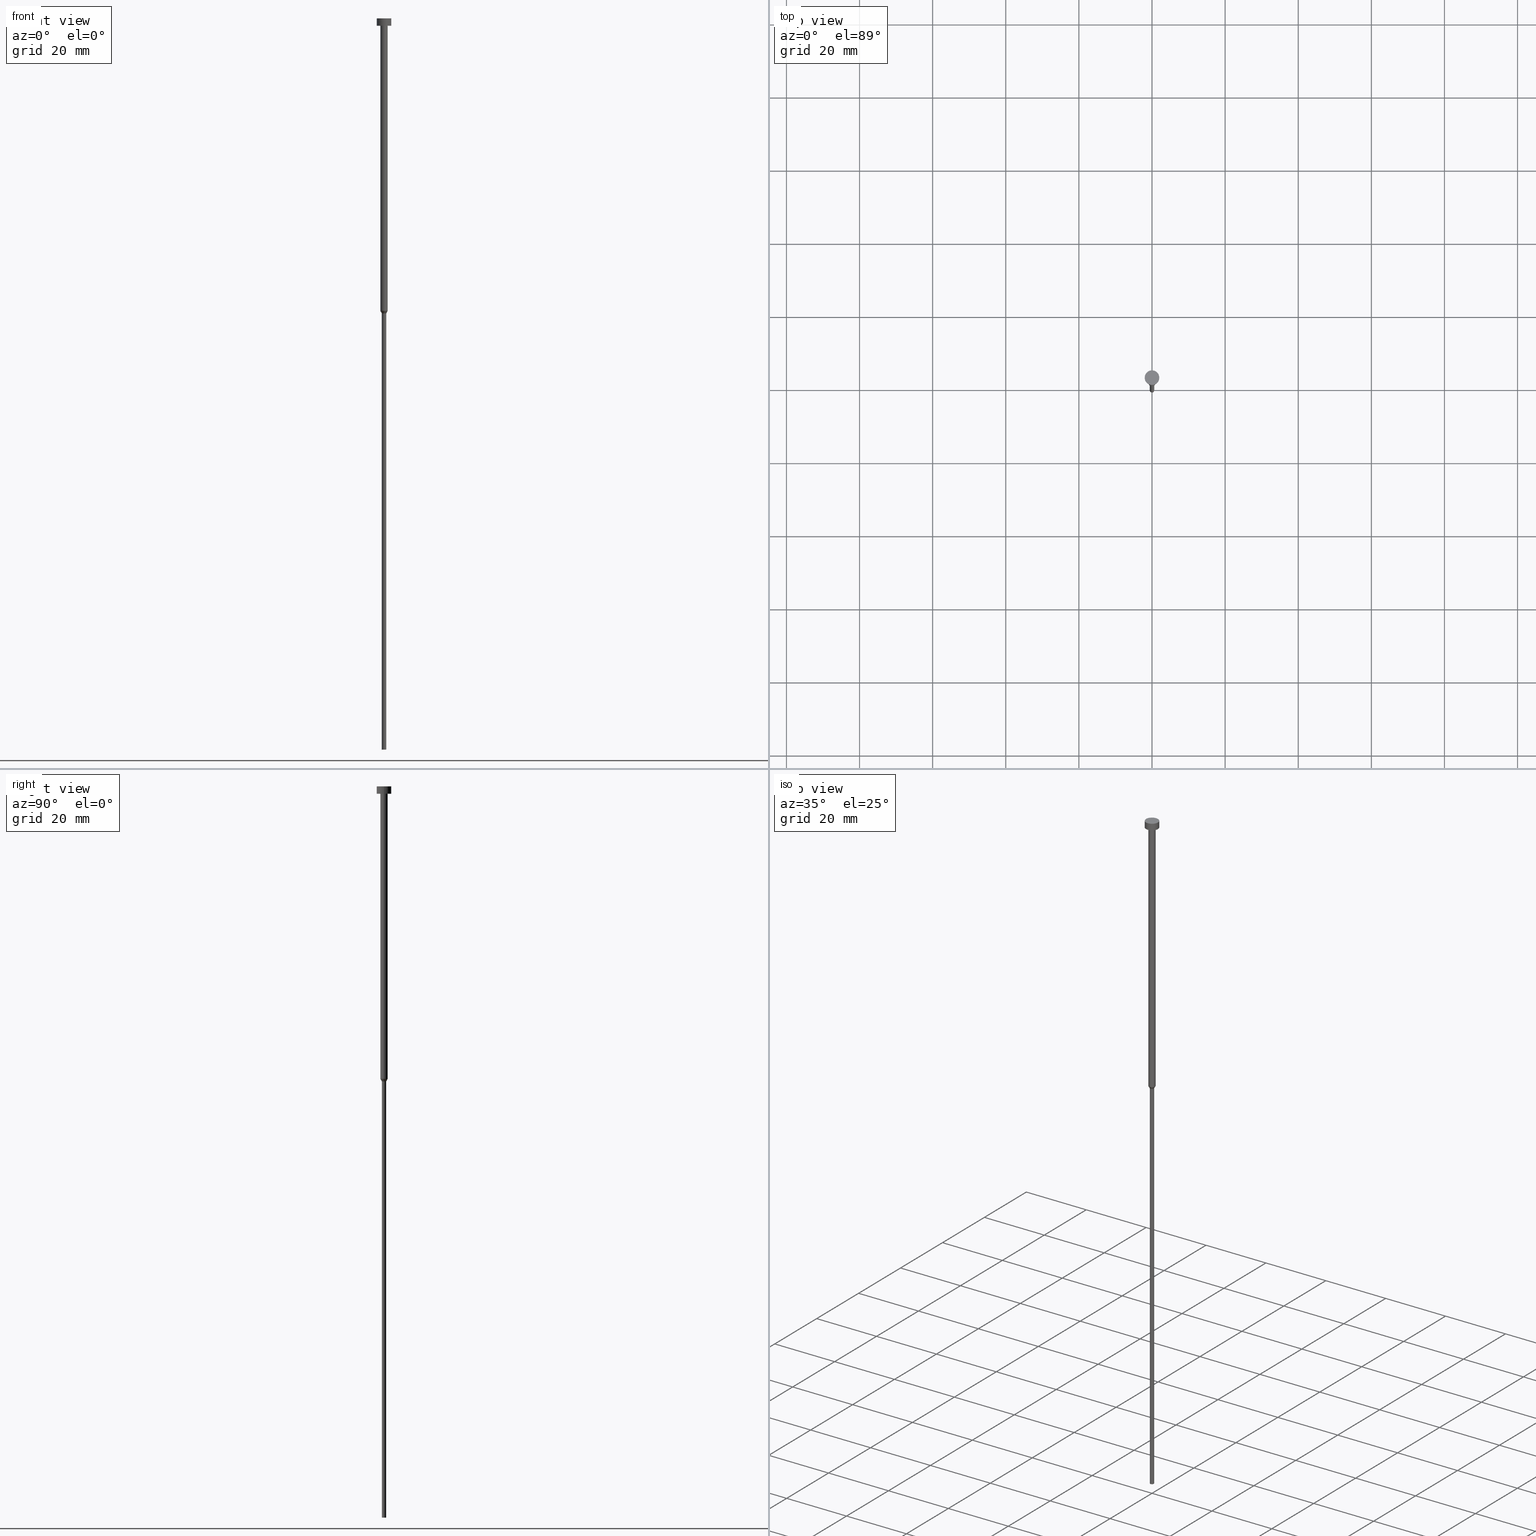
[diagram: canonical four-view strip — front | top / right | iso, engineering-drawing reading convention]
A machine part, canonical four-view strip (front | top / right | iso — engineering-drawing reading convention). The complete STEP part file that produces these views, byte-faithful:
ISO-10303-21;
HEADER;
FILE_DESCRIPTION (( 'STEP AP203' ),
    '1' );
FILE_NAME ('e88c.STEP',
    '2023-02-13T11:49:29',
    ( '' ),
    ( '' ),
    'SwSTEP 2.0',
    'SolidWorks 2019',
    '' );
FILE_SCHEMA (( 'CONFIG_CONTROL_DESIGN' ));
ENDSEC;

DATA;
#1 = DIRECTION ( 'NONE',  ( -1.000000000000000000, 0.000000000000000000, -0.000000000000000000 ) ) ;
#2 = CARTESIAN_POINT ( 'NONE',  ( 0.000000000000000000, 0.000000000000000000, -80.00000000000000000 ) ) ;
#3 = AXIS2_PLACEMENT_3D ( 'NONE', #2, #332, #88 ) ;
#4 = DIRECTION ( 'NONE',  ( 1.000000000000000000, 0.000000000000000000, 0.000000000000000000 ) ) ;
#5 = FACE_OUTER_BOUND ( 'NONE', #145, .T. ) ;
#6 = ORIENTED_EDGE ( 'NONE', *, *, #77, .T. ) ;
#7 = DIRECTION ( 'NONE',  ( 1.000000000000000000, 0.000000000000000000, 0.000000000000000000 ) ) ;
#8 = ORIENTED_EDGE ( 'NONE', *, *, #251, .T. ) ;
#9 = CIRCLE ( 'NONE', #47, 0.5999999999999998668 ) ;
#10 = DIRECTION ( 'NONE',  ( -0.000000000000000000, -0.000000000000000000, 1.000000000000000000 ) ) ;
#11 = ORIENTED_EDGE ( 'NONE', *, *, #57, .T. ) ;
#12 = ADVANCED_FACE ( 'NONE', ( #92 ), #67, .T. ) ;
#13 = DATE_TIME_ROLE ( 'creation_date' ) ;
#14 = SECURITY_CLASSIFICATION ( '', '', #320 ) ;
#15 = ADVANCED_FACE ( 'NONE', ( #352 ), #351, .T. ) ;
#16 = CALENDAR_DATE ( 2023, 13, 2 ) ;
#17 = ORIENTED_EDGE ( 'NONE', *, *, #53, .F. ) ;
#18 = COORDINATED_UNIVERSAL_TIME_OFFSET ( 1, 0, .AHEAD. ) ;
#19 = PERSON ( 'NEUR�EN�', 'NEUR�EN�', 'NEUR�EN�', ('NEUR�EN�'), ('NEUR�EN�'), ('NEUR�EN�') ) ;
#20 = CARTESIAN_POINT ( 'NONE',  ( 1.000000000000003109, 0.000000000000000000, -80.00000000000000000 ) ) ;
#21 = APPROVAL_ROLE ( '' ) ;
#22 = DIRECTION ( 'NONE',  ( -0.000000000000000000, -0.000000000000000000, 1.000000000000000000 ) ) ;
#23 = COORDINATED_UNIVERSAL_TIME_OFFSET ( 1, 0, .AHEAD. ) ;
#24 = CARTESIAN_POINT ( 'NONE',  ( -2.000000000000000000, 2.449293598294706414E-16, 0.000000000000000000 ) ) ;
#25 = DIRECTION ( 'NONE',  ( -0.000000000000000000, -0.000000000000000000, 1.000000000000000000 ) ) ;
#26 = CARTESIAN_POINT ( 'NONE',  ( 0.000000000000000000, -2.000000000000000000, -2.000000000000000444 ) ) ;
#27 = LOCAL_TIME ( 12, 49, 29.00000000000000000, #159 ) ;
#28 = PRODUCT_RELATED_PRODUCT_CATEGORY ( 'detail', '', ( #140 ) ) ;
#29 = CARTESIAN_POINT ( 'NONE',  ( 0.000000000000000000, 0.000000000000000000, -80.00000000000000000 ) ) ;
#30 = AXIS2_PLACEMENT_3D ( 'NONE', #29, #10, #227 ) ;
#31 = CARTESIAN_POINT ( 'NONE',  ( 0.000000000000000000, 0.000000000000000000, -2.000000000000000444 ) ) ;
#32 = CARTESIAN_POINT ( 'NONE',  ( -2.000000000000000000, 2.449293598294706414E-16, -2.449293598294705921E-16 ) ) ;
#33 = ORIENTED_EDGE ( 'NONE', *, *, #300, .T. ) ;
#34 = APPROVAL_PERSON_ORGANIZATION ( #39, #254, #157 ) ;
#35 = PLANE ( 'NONE',  #50 ) ;
#36 = ORIENTED_EDGE ( 'NONE', *, *, #300, .F. ) ;
#37 = DIRECTION ( 'NONE',  ( -0.000000000000000000, -0.000000000000000000, 1.000000000000000000 ) ) ;
#38 = EDGE_LOOP ( 'NONE', ( #287, #199, #124, #344 ) ) ;
#39 = PERSON_AND_ORGANIZATION ( #19, #42 ) ;
#40 = EDGE_LOOP ( 'NONE', ( #284, #150 ) ) ;
#41 = COORDINATED_UNIVERSAL_TIME_OFFSET ( 1, 0, .AHEAD. ) ;
#42 = ORGANIZATION ( 'NEUR�EN�', 'NEUR�EN�', '' ) ;
#43 = VERTEX_POINT ( 'NONE', #134 ) ;
#44 = APPROVAL_STATUS ( 'not_yet_approved' ) ;
#45 = CARTESIAN_POINT ( 'NONE',  ( 2.000000000000000000, 0.000000000000000000, -2.000000000000000444 ) ) ;
#46 = CALENDAR_DATE ( 2023, 13, 2 ) ;
#47 = AXIS2_PLACEMENT_3D ( 'NONE', #131, #274, #191 ) ;
#48 = DIRECTION ( 'NONE',  ( 1.000000000000000000, 0.000000000000000000, 0.000000000000000000 ) ) ;
#49 = CALENDAR_DATE ( 2023, 13, 2 ) ;
#50 = AXIS2_PLACEMENT_3D ( 'NONE', #195, #200, #305 ) ;
#51 = CARTESIAN_POINT ( 'NONE',  ( 0.000000000000000000, 0.000000000000000000, 0.000000000000000000 ) ) ;
#52 = CARTESIAN_POINT ( 'NONE',  ( 0.000000000000000000, 0.000000000000000000, -2.449293598294705921E-16 ) ) ;
#53 = EDGE_CURVE ( 'NONE', #228, #184, #321, .T. ) ;
#54 = AXIS2_PLACEMENT_3D ( 'NONE', #181, #81, #350 ) ;
#55 = FACE_OUTER_BOUND ( 'NONE', #38, .T. ) ;
#56 = VECTOR ( 'NONE', #268, 1000.000000000000114 ) ;
#57 = EDGE_CURVE ( 'NONE', #333, #276, #295, .T. ) ;
#58 = DIRECTION ( 'NONE',  ( -0.000000000000000000, -0.000000000000000000, 1.000000000000000000 ) ) ;
#59 = PRODUCT_DEFINITION ( 'NEZN�M�', '', #170, #269 ) ;
#60 = APPROVAL_PERSON_ORGANIZATION ( #94, #115, #99 ) ;
#61 = DIRECTION ( 'NONE',  ( 1.000000000000000000, 0.000000000000000000, 0.000000000000000000 ) ) ;
#62 = ORIENTED_EDGE ( 'NONE', *, *, #221, .F. ) ;
#63 = DIRECTION ( 'NONE',  ( -0.000000000000000000, -0.000000000000000000, 1.000000000000000000 ) ) ;
#64 = ORIENTED_EDGE ( 'NONE', *, *, #204, .F. ) ;
#65 = CIRCLE ( 'NONE', #317, 0.5999999999999998668 ) ;
#66 = DIRECTION ( 'NONE',  ( 1.000000000000000000, 0.000000000000000000, 0.000000000000000000 ) ) ;
#67 = PLANE ( 'NONE',  #54 ) ;
#68 = ORIENTED_EDGE ( 'NONE', *, *, #216, .T. ) ;
#69 = PERSON_AND_ORGANIZATION_ROLE ( 'classification_officer' ) ;
#70 = ORIENTED_EDGE ( 'NONE', *, *, #250, .F. ) ;
#71 = DATE_AND_TIME ( #206, #238 ) ;
#72 = DIRECTION ( 'NONE',  ( 1.000000000000000000, 0.000000000000000000, 0.000000000000000000 ) ) ;
#73 = COORDINATED_UNIVERSAL_TIME_OFFSET ( 1, 0, .AHEAD. ) ;
#74 = CARTESIAN_POINT ( 'NONE',  ( 0.000000000000000000, 0.000000000000000000, -2.000000000000000444 ) ) ;
#75 = PERSON_AND_ORGANIZATION ( #19, #42 ) ;
#76 = CARTESIAN_POINT ( 'NONE',  ( 0.000000000000000000, 0.000000000000000000, -2.000000000000000444 ) ) ;
#77 = EDGE_CURVE ( 'NONE', #205, #315, #166, .T. ) ;
#78 = AXIS2_PLACEMENT_3D ( 'NONE', #112, #246, #119 ) ;
#79 = FACE_OUTER_BOUND ( 'NONE', #148, .T. ) ;
#80 = EDGE_CURVE ( 'NONE', #333, #122, #9, .T. ) ;
#81 = DIRECTION ( 'NONE',  ( 0.000000000000000000, -0.000000000000000000, 1.000000000000000000 ) ) ;
#82 = CLOSED_SHELL ( 'NONE', ( #171, #116, #15, #286, #245, #235, #341, #172, #176, #296, #12 ) ) ;
#83 = PRODUCT_DEFINITION_SHAPE ( 'NONE', 'NONE',  #59 ) ;
#84 = CARTESIAN_POINT ( 'NONE',  ( 0.5999999999999998668, 0.000000000000000000, -80.69282032302756136 ) ) ;
#85 = DIRECTION ( 'NONE',  ( -0.000000000000000000, -0.000000000000000000, 1.000000000000000000 ) ) ;
#86 = DIRECTION ( 'NONE',  ( -0.000000000000000000, -0.000000000000000000, 1.000000000000000000 ) ) ;
#87 = ORIENTED_EDGE ( 'NONE', *, *, #250, .T. ) ;
#88 = DIRECTION ( 'NONE',  ( 1.000000000000000000, 0.000000000000000000, 0.000000000000000000 ) ) ;
#89 = ORIENTED_EDGE ( 'NONE', *, *, #142, .F. ) ;
#90 = VECTOR ( 'NONE', #293, 1000.000000000000114 ) ;
#91 = CARTESIAN_POINT ( 'NONE',  ( 0.000000000000000000, 0.000000000000000000, -2.449293598294705921E-16 ) ) ;
#92 = FACE_OUTER_BOUND ( 'NONE', #230, .T. ) ;
#93 = CIRCLE ( 'NONE', #30, 1.000000000000003109 ) ;
#94 = PERSON_AND_ORGANIZATION ( #19, #42 ) ;
#95 = ORIENTED_EDGE ( 'NONE', *, *, #57, .F. ) ;
#96 = APPROVAL_DATE_TIME ( #349, #254 ) ;
#97 = ORIENTED_EDGE ( 'NONE', *, *, #324, .F. ) ;
#98 = VECTOR ( 'NONE', #325, 1000.000000000000000 ) ;
#99 = APPROVAL_ROLE ( '' ) ;
#100 = ORIENTED_EDGE ( 'NONE', *, *, #324, .T. ) ;
#101 = APPLICATION_PROTOCOL_DEFINITION ( 'international standard', 'config_control_design', 1994, #346 ) ;
#102 = AXIS2_PLACEMENT_3D ( 'NONE', #198, #58, #7 ) ;
#103 = CARTESIAN_POINT ( 'NONE',  ( 0.000000000000000000, 0.000000000000000000, -2.000000000000000444 ) ) ;
#104 = PERSON_AND_ORGANIZATION_ROLE ( 'creator' ) ;
#105 = CARTESIAN_POINT ( 'NONE',  ( 1.000000000000003331, 0.000000000000000000, 0.000000000000000000 ) ) ;
#106 = EDGE_CURVE ( 'NONE', #276, #318, #192, .T. ) ;
#107 = DIRECTION ( 'NONE',  ( -0.000000000000000000, -0.000000000000000000, 1.000000000000000000 ) ) ;
#108 = EDGE_CURVE ( 'NONE', #43, #315, #219, .T. ) ;
#109 = LOCAL_TIME ( 12, 49, 29.00000000000000000, #18 ) ;
#110 = PLANE ( 'NONE',  #197 ) ;
#111 = CARTESIAN_POINT ( 'NONE',  ( 1.000000000000003109, 0.000000000000000000, -80.00000000000000000 ) ) ;
#112 = CARTESIAN_POINT ( 'NONE',  ( 0.000000000000000000, 0.000000000000000000, -80.69282032302756136 ) ) ;
#113 = EDGE_CURVE ( 'NONE', #228, #311, #322, .T. ) ;
#114 = VECTOR ( 'NONE', #301, 1000.000000000000000 ) ;
#115 = APPROVAL ( #203, 'NEUR�EN�' ) ;
#116 = ADVANCED_FACE ( 'NONE', ( #297 ), #237, .T. ) ;
#117 = CARTESIAN_POINT ( 'NONE',  ( 0.000000000000000000, 0.000000000000000000, 0.000000000000000000 ) ) ;
#118 = AXIS2_PLACEMENT_3D ( 'NONE', #135, #107, #240 ) ;
#119 = DIRECTION ( 'NONE',  ( 1.000000000000000000, 0.000000000000000000, 0.000000000000000000 ) ) ;
#120 = ORIENTED_EDGE ( 'NONE', *, *, #113, .F. ) ;
#121 = FACE_OUTER_BOUND ( 'NONE', #261, .T. ) ;
#122 = VERTEX_POINT ( 'NONE', #186 ) ;
#123 = FACE_OUTER_BOUND ( 'NONE', #331, .T. ) ;
#124 = ORIENTED_EDGE ( 'NONE', *, *, #225, .F. ) ;
#125 = AXIS2_PLACEMENT_3D ( 'NONE', #91, #86, #66 ) ;
#126 = CIRCLE ( 'NONE', #302, 1.000000000000003109 ) ;
#127 = APPLICATION_PROTOCOL_DEFINITION ( 'international standard', 'config_control_design', 1994, #264 ) ;
#128 = ORIENTED_EDGE ( 'NONE', *, *, #156, .T. ) ;
#129 = DATE_AND_TIME ( #16, #109 ) ;
#130 = ORIENTED_EDGE ( 'NONE', *, *, #292, .T. ) ;
#131 = CARTESIAN_POINT ( 'NONE',  ( 0.000000000000000000, 0.000000000000000000, -200.0000000000000000 ) ) ;
#132 = PERSON_AND_ORGANIZATION_ROLE ( 'creator' ) ;
#133 = CC_DESIGN_APPROVAL ( #328, ( #170 ) ) ;
#134 = CARTESIAN_POINT ( 'NONE',  ( -1.000000000000003553, 1.224646799147357398E-16, -2.000000000000000444 ) ) ;
#135 = CARTESIAN_POINT ( 'NONE',  ( 0.000000000000000000, 0.000000000000000000, 0.000000000000000000 ) ) ;
#136 = DIRECTION ( 'NONE',  ( 1.000000000000000000, 0.000000000000000000, 0.000000000000000000 ) ) ;
#137 = CC_DESIGN_PERSON_AND_ORGANIZATION_ASSIGNMENT ( #232, #132, ( #59 ) ) ;
#138 = AXIS2_PLACEMENT_3D ( 'NONE', #31, #63, #224 ) ;
#139 = DIRECTION ( 'NONE',  ( 0.000000000000000000, 0.000000000000000000, -1.000000000000000000 ) ) ;
#140 = PRODUCT ( 'e88c', 'e88c', '', ( #182 ) ) ;
#141 = CARTESIAN_POINT ( 'NONE',  ( -2.000000000000000000, 2.449293598294706414E-16, -2.000000000000000444 ) ) ;
#142 = EDGE_CURVE ( 'NONE', #311, #313, #174, .T. ) ;
#143 = CYLINDRICAL_SURFACE ( 'NONE', #329, 2.000000000000000000 ) ;
#144 = CARTESIAN_POINT ( 'NONE',  ( 1.000000000000003553, 0.000000000000000000, -2.000000000000000444 ) ) ;
#145 = EDGE_LOOP ( 'NONE', ( #155, #100, #209, #62 ) ) ;
#146 = AXIS2_PLACEMENT_3D ( 'NONE', #270, #316, #345 ) ;
#147 = FACE_OUTER_BOUND ( 'NONE', #233, .T. ) ;
#148 = EDGE_LOOP ( 'NONE', ( #281, #263, #6, #339 ) ) ;
#149 = CARTESIAN_POINT ( 'NONE',  ( 0.000000000000000000, 0.000000000000000000, 0.000000000000000000 ) ) ;
#150 = ORIENTED_EDGE ( 'NONE', *, *, #108, .T. ) ;
#151 = DATE_AND_TIME ( #187, #27 ) ;
#152 = ORIENTED_EDGE ( 'NONE', *, *, #251, .F. ) ;
#153 = EDGE_CURVE ( 'NONE', #315, #43, #247, .T. ) ;
#154 = CC_DESIGN_APPROVAL ( #115, ( #14 ) ) ;
#155 = ORIENTED_EDGE ( 'NONE', *, *, #106, .F. ) ;
#156 = EDGE_CURVE ( 'NONE', #318, #43, #190, .T. ) ;
#157 = APPROVAL_ROLE ( '' ) ;
#158 = LINE ( 'NONE', #111, #56 ) ;
#159 = COORDINATED_UNIVERSAL_TIME_OFFSET ( 1, 0, .AHEAD. ) ;
#160 = DIRECTION ( 'NONE',  ( -0.000000000000000000, -0.000000000000000000, 1.000000000000000000 ) ) ;
#161 = DATE_AND_TIME ( #49, #215 ) ;
#162 = CIRCLE ( 'NONE', #102, 0.5999999999999998668 ) ;
#163 = CARTESIAN_POINT ( 'NONE',  ( -1.000000000000003331, 1.224646799147357151E-16, 0.000000000000000000 ) ) ;
#164 = CC_DESIGN_DATE_AND_TIME_ASSIGNMENT ( #161, #337, ( #14 ) ) ;
#165 = CYLINDRICAL_SURFACE ( 'NONE', #338, 1.000000000000003331 ) ;
#166 = LINE ( 'NONE', #105, #279 ) ;
#167 = CONICAL_SURFACE ( 'NONE', #3, 1.000000000000003109, 0.5235987755982968173 ) ;
#168 = CYLINDRICAL_SURFACE ( 'NONE', #275, 0.5999999999999998668 ) ;
#169 = AXIS2_PLACEMENT_3D ( 'NONE', #74, #217, #188 ) ;
#170 = PRODUCT_DEFINITION_FORMATION_WITH_SPECIFIED_SOURCE ( 'LIBOVOLN�', '', #140, .NOT_KNOWN. ) ;
#171 = ADVANCED_FACE ( 'NONE', ( #55 ), #272, .T. ) ;
#172 = ADVANCED_FACE ( 'NONE', ( #79 ), #165, .T. ) ;
#173 = FACE_OUTER_BOUND ( 'NONE', #226, .T. ) ;
#174 = CIRCLE ( 'NONE', #307, 2.000000000000000000 ) ;
#175 = ORIENTED_EDGE ( 'NONE', *, *, #77, .F. ) ;
#176 = ADVANCED_FACE ( 'NONE', ( #242, #354 ), #110, .T. ) ;
#177 = CARTESIAN_POINT ( 'NONE',  ( -0.5999999999999998668, 7.347880794884117764E-17, -80.69282032302756136 ) ) ;
#178 = ORIENTED_EDGE ( 'NONE', *, *, #80, .F. ) ;
#179 = CC_DESIGN_DATE_AND_TIME_ASSIGNMENT ( #151, #13, ( #59 ) ) ;
#180 = CYLINDRICAL_SURFACE ( 'NONE', #256, 0.5999999999999998668 ) ;
#181 = CARTESIAN_POINT ( 'NONE',  ( 0.000000000000000000, 0.000000000000000000, -1.224646799147352961E-16 ) ) ;
#182 = MECHANICAL_CONTEXT ( 'NONE', #264, 'mechanical' ) ;
#183 = EDGE_LOOP ( 'NONE', ( #342, #17 ) ) ;
#184 = VERTEX_POINT ( 'NONE', #45 ) ;
#185 = PERSON_AND_ORGANIZATION_ROLE ( 'design_supplier' ) ;
#186 = CARTESIAN_POINT ( 'NONE',  ( 0.5999999999999998668, 0.000000000000000000, -200.0000000000000000 ) ) ;
#187 = CALENDAR_DATE ( 2023, 13, 2 ) ;
#188 = DIRECTION ( 'NONE',  ( 1.000000000000000000, 0.000000000000000000, 0.000000000000000000 ) ) ;
#189 = PERSON_AND_ORGANIZATION ( #19, #42 ) ;
#190 = LINE ( 'NONE', #163, #202 ) ;
#191 = DIRECTION ( 'NONE',  ( 1.000000000000000000, 0.000000000000000000, 0.000000000000000000 ) ) ;
#192 = LINE ( 'NONE', #298, #90 ) ;
#193 = CARTESIAN_POINT ( 'NONE',  ( -0.5999999999999998668, 7.347880794884117764E-17, -200.0000000000000000 ) ) ;
#194 = APPROVAL_PERSON_ORGANIZATION ( #340, #328, #21 ) ;
#195 = CARTESIAN_POINT ( 'NONE',  ( 0.000000000000000000, 0.000000000000000000, -200.0000000000000000 ) ) ;
#196 = CC_DESIGN_PERSON_AND_ORGANIZATION_ASSIGNMENT ( #75, #343, ( #140 ) ) ;
#197 = AXIS2_PLACEMENT_3D ( 'NONE', #26, #139, #1 ) ;
#198 = CARTESIAN_POINT ( 'NONE',  ( 0.000000000000000000, 0.000000000000000000, -200.0000000000000000 ) ) ;
#199 = ORIENTED_EDGE ( 'NONE', *, *, #113, .T. ) ;
#200 = DIRECTION ( 'NONE',  ( 0.000000000000000000, 0.000000000000000000, -1.000000000000000000 ) ) ;
#201 = ORIENTED_EDGE ( 'NONE', *, *, #53, .T. ) ;
#202 = VECTOR ( 'NONE', #291, 1000.000000000000000 ) ;
#203 = APPROVAL_STATUS ( 'not_yet_approved' ) ;
#204 = EDGE_CURVE ( 'NONE', #309, #205, #158, .T. ) ;
#205 = VERTEX_POINT ( 'NONE', #20 ) ;
#206 = CALENDAR_DATE ( 2023, 13, 2 ) ;
#207 = ORIENTED_EDGE ( 'NONE', *, *, #216, .F. ) ;
#208 =( NAMED_UNIT ( * ) PLANE_ANGLE_UNIT ( ) SI_UNIT ( $, .RADIAN. ) );
#209 = ORIENTED_EDGE ( 'NONE', *, *, #204, .T. ) ;
#210 = AXIS2_PLACEMENT_3D ( 'NONE', #76, #22, #239 ) ;
#211 = CARTESIAN_POINT ( 'NONE',  ( 0.000000000000000000, 0.000000000000000000, -80.00000000000000000 ) ) ;
#212 = PERSON_AND_ORGANIZATION ( #19, #42 ) ;
#213 = DIRECTION ( 'NONE',  ( -0.000000000000000000, -0.000000000000000000, 1.000000000000000000 ) ) ;
#214 = DIRECTION ( 'NONE',  ( 1.000000000000000000, 0.000000000000000000, 0.000000000000000000 ) ) ;
#215 = LOCAL_TIME ( 12, 49, 29.00000000000000000, #41 ) ;
#216 = EDGE_CURVE ( 'NONE', #122, #333, #162, .T. ) ;
#217 = DIRECTION ( 'NONE',  ( -0.000000000000000000, -0.000000000000000000, 1.000000000000000000 ) ) ;
#218 = DIRECTION ( 'NONE',  ( -0.000000000000000000, -0.000000000000000000, 1.000000000000000000 ) ) ;
#219 = CIRCLE ( 'NONE', #241, 1.000000000000003553 ) ;
#220 = CARTESIAN_POINT ( 'NONE',  ( 0.000000000000000000, 0.000000000000000000, -80.00000000000000000 ) ) ;
#221 = EDGE_CURVE ( 'NONE', #318, #205, #93, .T. ) ;
#222 = DIRECTION ( 'NONE',  ( -0.000000000000000000, -0.000000000000000000, 1.000000000000000000 ) ) ;
#223 = EDGE_LOOP ( 'NONE', ( #8, #128, #306, #175 ) ) ;
#224 = DIRECTION ( 'NONE',  ( 1.000000000000000000, 0.000000000000000000, 0.000000000000000000 ) ) ;
#225 = EDGE_CURVE ( 'NONE', #313, #311, #262, .T. ) ;
#226 = EDGE_LOOP ( 'NONE', ( #68, #11, #36, #70 ) ) ;
#227 = DIRECTION ( 'NONE',  ( 1.000000000000000000, 0.000000000000000000, 0.000000000000000000 ) ) ;
#228 = VERTEX_POINT ( 'NONE', #141 ) ;
#229 = APPROVAL_DATE_TIME ( #71, #328 ) ;
#230 = EDGE_LOOP ( 'NONE', ( #257, #236 ) ) ;
#231 =( GEOMETRIC_REPRESENTATION_CONTEXT ( 3 ) GLOBAL_UNCERTAINTY_ASSIGNED_CONTEXT ( ( #304 ) ) GLOBAL_UNIT_ASSIGNED_CONTEXT ( ( #308, #208, #290 ) ) REPRESENTATION_CONTEXT ( 'NONE', 'WORKASPACE' ) );
#232 = PERSON_AND_ORGANIZATION ( #19, #42 ) ;
#233 = EDGE_LOOP ( 'NONE', ( #120, #201, #130, #89 ) ) ;
#234 = SHAPE_DEFINITION_REPRESENTATION ( #83, #353 ) ;
#235 = ADVANCED_FACE ( 'NONE', ( #121 ), #168, .T. ) ;
#236 = ORIENTED_EDGE ( 'NONE', *, *, #142, .T. ) ;
#237 = CYLINDRICAL_SURFACE ( 'NONE', #267, 1.000000000000003331 ) ;
#238 = LOCAL_TIME ( 12, 49, 29.00000000000000000, #23 ) ;
#239 = DIRECTION ( 'NONE',  ( 1.000000000000000000, 0.000000000000000000, 0.000000000000000000 ) ) ;
#240 = DIRECTION ( 'NONE',  ( 1.000000000000000000, 0.000000000000000000, 0.000000000000000000 ) ) ;
#241 = AXIS2_PLACEMENT_3D ( 'NONE', #103, #323, #48 ) ;
#242 = FACE_BOUND ( 'NONE', #40, .T. ) ;
#243 = VECTOR ( 'NONE', #37, 1000.000000000000000 ) ;
#244 = DIRECTION ( 'NONE',  ( -0.000000000000000000, -0.000000000000000000, 1.000000000000000000 ) ) ;
#245 = ADVANCED_FACE ( 'NONE', ( #123 ), #35, .T. ) ;
#246 = DIRECTION ( 'NONE',  ( -0.000000000000000000, -0.000000000000000000, 1.000000000000000000 ) ) ;
#247 = CIRCLE ( 'NONE', #210, 1.000000000000003553 ) ;
#248 = CIRCLE ( 'NONE', #138, 2.000000000000000000 ) ;
#249 = CC_DESIGN_PERSON_AND_ORGANIZATION_ASSIGNMENT ( #189, #69, ( #14 ) ) ;
#250 = EDGE_CURVE ( 'NONE', #122, #309, #334, .T. ) ;
#251 = EDGE_CURVE ( 'NONE', #205, #318, #126, .T. ) ;
#253 = VECTOR ( 'NONE', #213, 1000.000000000000000 ) ;
#252 = DIRECTION ( 'NONE',  ( -0.000000000000000000, -0.000000000000000000, 1.000000000000000000 ) ) ;
#254 = APPROVAL ( #44, 'NEUR�EN�' ) ;
#255 = CARTESIAN_POINT ( 'NONE',  ( -1.000000000000003109, 1.224646799147356905E-16, -80.00000000000000000 ) ) ;
#256 = AXIS2_PLACEMENT_3D ( 'NONE', #117, #327, #303 ) ;
#257 = ORIENTED_EDGE ( 'NONE', *, *, #225, .T. ) ;
#258 = CARTESIAN_POINT ( 'NONE',  ( 0.000000000000000000, 0.000000000000000000, -80.69282032302756136 ) ) ;
#259 = EDGE_LOOP ( 'NONE', ( #33, #288, #152, #64 ) ) ;
#260 = DIRECTION ( 'NONE',  ( 1.000000000000000000, 0.000000000000000000, 0.000000000000000000 ) ) ;
#261 = EDGE_LOOP ( 'NONE', ( #95, #266, #87, #97 ) ) ;
#262 = CIRCLE ( 'NONE', #125, 2.000000000000000000 ) ;
#263 = ORIENTED_EDGE ( 'NONE', *, *, #221, .T. ) ;
#264 = APPLICATION_CONTEXT ( 'configuration controlled 3d designs of mechanical parts and assemblies' ) ;
#265 = APPROVAL_STATUS ( 'not_yet_approved' ) ;
#266 = ORIENTED_EDGE ( 'NONE', *, *, #80, .T. ) ;
#267 = AXIS2_PLACEMENT_3D ( 'NONE', #51, #160, #72 ) ;
#268 = DIRECTION ( 'NONE',  ( 0.4999999999999981681, 0.000000000000000000, 0.8660254037844395958 ) ) ;
#269 = DESIGN_CONTEXT ( 'detailed design', #346, 'design' ) ;
#270 = CARTESIAN_POINT ( 'NONE',  ( 0.000000000000000000, 0.000000000000000000, 0.000000000000000000 ) ) ;
#271 = DIRECTION ( 'NONE',  ( 1.000000000000000000, 0.000000000000000000, 0.000000000000000000 ) ) ;
#272 = CYLINDRICAL_SURFACE ( 'NONE', #118, 2.000000000000000000 ) ;
#273 = CARTESIAN_POINT ( 'NONE',  ( 0.000000000000000000, 0.000000000000000000, 0.000000000000000000 ) ) ;
#274 = DIRECTION ( 'NONE',  ( -0.000000000000000000, -0.000000000000000000, 1.000000000000000000 ) ) ;
#275 = AXIS2_PLACEMENT_3D ( 'NONE', #278, #85, #4 ) ;
#276 = VERTEX_POINT ( 'NONE', #177 ) ;
#277 = CC_DESIGN_PERSON_AND_ORGANIZATION_ASSIGNMENT ( #212, #185, ( #170 ) ) ;
#278 = CARTESIAN_POINT ( 'NONE',  ( 0.000000000000000000, 0.000000000000000000, 0.000000000000000000 ) ) ;
#279 = VECTOR ( 'NONE', #244, 1000.000000000000000 ) ;
#280 = LINE ( 'NONE', #285, #243 ) ;
#281 = ORIENTED_EDGE ( 'NONE', *, *, #156, .F. ) ;
#282 = CARTESIAN_POINT ( 'NONE',  ( 2.000000000000000000, 0.000000000000000000, -2.449293598294705921E-16 ) ) ;
#283 = CIRCLE ( 'NONE', #78, 0.5999999999999998668 ) ;
#284 = ORIENTED_EDGE ( 'NONE', *, *, #153, .T. ) ;
#285 = CARTESIAN_POINT ( 'NONE',  ( 2.000000000000000000, 0.000000000000000000, 0.000000000000000000 ) ) ;
#286 = ADVANCED_FACE ( 'NONE', ( #173 ), #180, .T. ) ;
#287 = ORIENTED_EDGE ( 'NONE', *, *, #294, .T. ) ;
#288 = ORIENTED_EDGE ( 'NONE', *, *, #106, .T. ) ;
#289 = CC_DESIGN_SECURITY_CLASSIFICATION ( #14, ( #170 ) ) ;
#290 =( NAMED_UNIT ( * ) SI_UNIT ( $, .STERADIAN. ) SOLID_ANGLE_UNIT ( ) );
#291 = DIRECTION ( 'NONE',  ( -0.000000000000000000, -0.000000000000000000, 1.000000000000000000 ) ) ;
#292 = EDGE_CURVE ( 'NONE', #184, #313, #280, .T. ) ;
#293 = DIRECTION ( 'NONE',  ( -0.4999999999999981681, 6.123233995736742617E-17, 0.8660254037844395958 ) ) ;
#294 = EDGE_CURVE ( 'NONE', #184, #228, #248, .T. ) ;
#295 = LINE ( 'NONE', #319, #253 ) ;
#296 = ADVANCED_FACE ( 'NONE', ( #147 ), #143, .T. ) ;
#297 = FACE_OUTER_BOUND ( 'NONE', #223, .T. ) ;
#298 = CARTESIAN_POINT ( 'NONE',  ( -1.000000000000003109, 1.224646799147356905E-16, -80.00000000000000000 ) ) ;
#299 = AXIS2_PLACEMENT_3D ( 'NONE', #211, #348, #214 ) ;
#300 = EDGE_CURVE ( 'NONE', #309, #276, #65, .T. ) ;
#301 = DIRECTION ( 'NONE',  ( -0.000000000000000000, -0.000000000000000000, 1.000000000000000000 ) ) ;
#302 = AXIS2_PLACEMENT_3D ( 'NONE', #220, #326, #61 ) ;
#303 = DIRECTION ( 'NONE',  ( 1.000000000000000000, 0.000000000000000000, 0.000000000000000000 ) ) ;
#304 = UNCERTAINTY_MEASURE_WITH_UNIT (LENGTH_MEASURE( 1.000000000000000082E-05 ), #308, 'distance_accuracy_value', 'NONE');
#305 = DIRECTION ( 'NONE',  ( -1.000000000000000000, 0.000000000000000000, -0.000000000000000000 ) ) ;
#306 = ORIENTED_EDGE ( 'NONE', *, *, #153, .F. ) ;
#307 = AXIS2_PLACEMENT_3D ( 'NONE', #52, #218, #271 ) ;
#308 =( LENGTH_UNIT ( ) NAMED_UNIT ( * ) SI_UNIT ( .MILLI., .METRE. ) );
#309 = VERTEX_POINT ( 'NONE', #84 ) ;
#310 = CARTESIAN_POINT ( 'NONE',  ( 0.5999999999999998668, 0.000000000000000000, 0.000000000000000000 ) ) ;
#311 = VERTEX_POINT ( 'NONE', #32 ) ;
#312 = APPROVAL_DATE_TIME ( #129, #115 ) ;
#313 = VERTEX_POINT ( 'NONE', #282 ) ;
#314 = PERSON_AND_ORGANIZATION ( #19, #42 ) ;
#315 = VERTEX_POINT ( 'NONE', #144 ) ;
#316 = DIRECTION ( 'NONE',  ( 0.000000000000000000, 0.000000000000000000, 1.000000000000000000 ) ) ;
#317 = AXIS2_PLACEMENT_3D ( 'NONE', #258, #222, #260 ) ;
#318 = VERTEX_POINT ( 'NONE', #255 ) ;
#319 = CARTESIAN_POINT ( 'NONE',  ( -0.5999999999999998668, 7.347880794884117764E-17, 0.000000000000000000 ) ) ;
#320 = SECURITY_CLASSIFICATION_LEVEL ( 'unclassified' ) ;
#321 = CIRCLE ( 'NONE', #169, 2.000000000000000000 ) ;
#322 = LINE ( 'NONE', #24, #98 ) ;
#323 = DIRECTION ( 'NONE',  ( -0.000000000000000000, -0.000000000000000000, 1.000000000000000000 ) ) ;
#324 = EDGE_CURVE ( 'NONE', #276, #309, #283, .T. ) ;
#325 = DIRECTION ( 'NONE',  ( -0.000000000000000000, -0.000000000000000000, 1.000000000000000000 ) ) ;
#326 = DIRECTION ( 'NONE',  ( -0.000000000000000000, -0.000000000000000000, 1.000000000000000000 ) ) ;
#327 = DIRECTION ( 'NONE',  ( -0.000000000000000000, -0.000000000000000000, 1.000000000000000000 ) ) ;
#328 = APPROVAL ( #265, 'NEUR�EN�' ) ;
#329 = AXIS2_PLACEMENT_3D ( 'NONE', #149, #252, #330 ) ;
#330 = DIRECTION ( 'NONE',  ( 1.000000000000000000, 0.000000000000000000, 0.000000000000000000 ) ) ;
#331 = EDGE_LOOP ( 'NONE', ( #207, #178 ) ) ;
#332 = DIRECTION ( 'NONE',  ( -0.000000000000000000, -0.000000000000000000, 1.000000000000000000 ) ) ;
#333 = VERTEX_POINT ( 'NONE', #193 ) ;
#334 = LINE ( 'NONE', #310, #114 ) ;
#335 = CC_DESIGN_PERSON_AND_ORGANIZATION_ASSIGNMENT ( #314, #104, ( #170 ) ) ;
#336 = MANIFOLD_SOLID_BREP ( 'Rotovat1', #82 ) ;
#337 = DATE_TIME_ROLE ( 'classification_date' ) ;
#338 = AXIS2_PLACEMENT_3D ( 'NONE', #273, #25, #136 ) ;
#339 = ORIENTED_EDGE ( 'NONE', *, *, #108, .F. ) ;
#340 = PERSON_AND_ORGANIZATION ( #19, #42 ) ;
#341 = ADVANCED_FACE ( 'NONE', ( #5 ), #167, .T. ) ;
#342 = ORIENTED_EDGE ( 'NONE', *, *, #294, .F. ) ;
#343 = PERSON_AND_ORGANIZATION_ROLE ( 'design_owner' ) ;
#344 = ORIENTED_EDGE ( 'NONE', *, *, #292, .F. ) ;
#345 = DIRECTION ( 'NONE',  ( 1.000000000000000000, 0.000000000000000000, 0.000000000000000000 ) ) ;
#346 = APPLICATION_CONTEXT ( 'configuration controlled 3d designs of mechanical parts and assemblies' ) ;
#347 = LOCAL_TIME ( 12, 49, 29.00000000000000000, #73 ) ;
#348 = DIRECTION ( 'NONE',  ( -0.000000000000000000, -0.000000000000000000, 1.000000000000000000 ) ) ;
#349 = DATE_AND_TIME ( #46, #347 ) ;
#350 = DIRECTION ( 'NONE',  ( 1.000000000000000000, 0.000000000000000000, 0.000000000000000000 ) ) ;
#351 = CONICAL_SURFACE ( 'NONE', #299, 1.000000000000003109, 0.5235987755982968173 ) ;
#352 = FACE_OUTER_BOUND ( 'NONE', #259, .T. ) ;
#353 = ADVANCED_BREP_SHAPE_REPRESENTATION ( 'e88c', ( #336, #146 ), #231 ) ;
#354 = FACE_OUTER_BOUND ( 'NONE', #183, .T. ) ;
#355 = CC_DESIGN_APPROVAL ( #254, ( #59 ) ) ;
ENDSEC;
END-ISO-10303-21;
